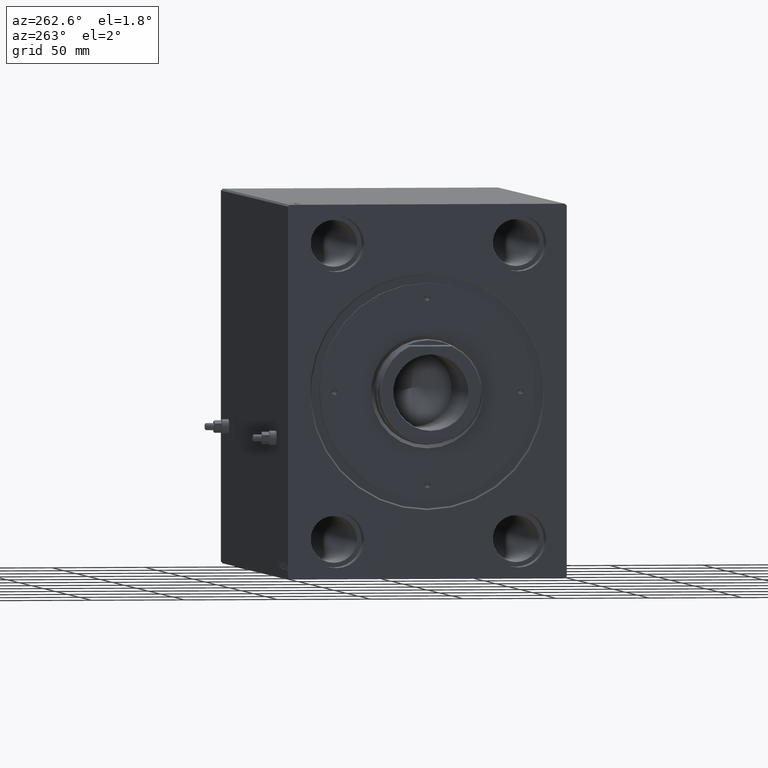
[diagram: clean part render]
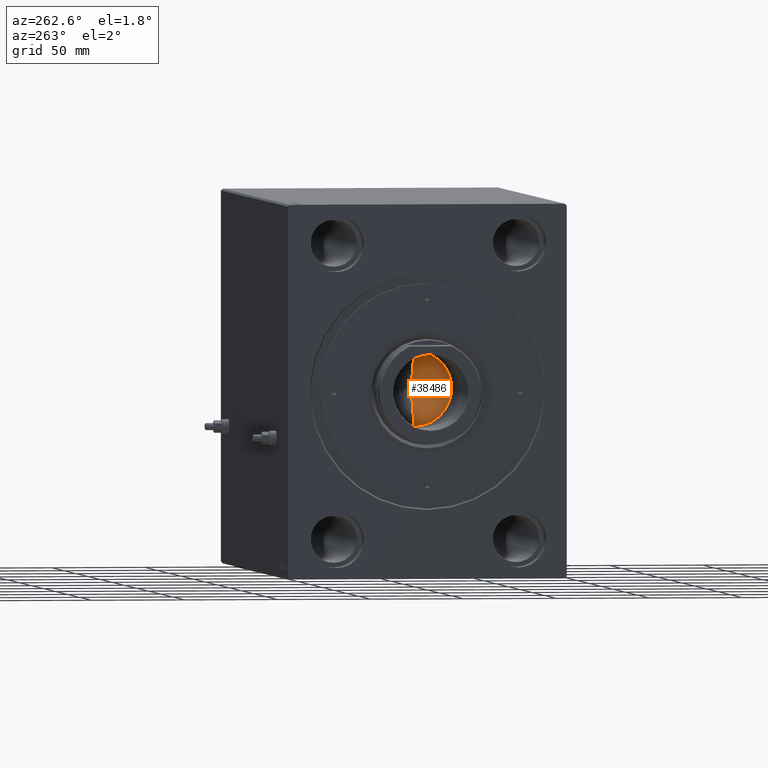
[diagram: same view with one face highlighted and labeled with its STEP entity id]
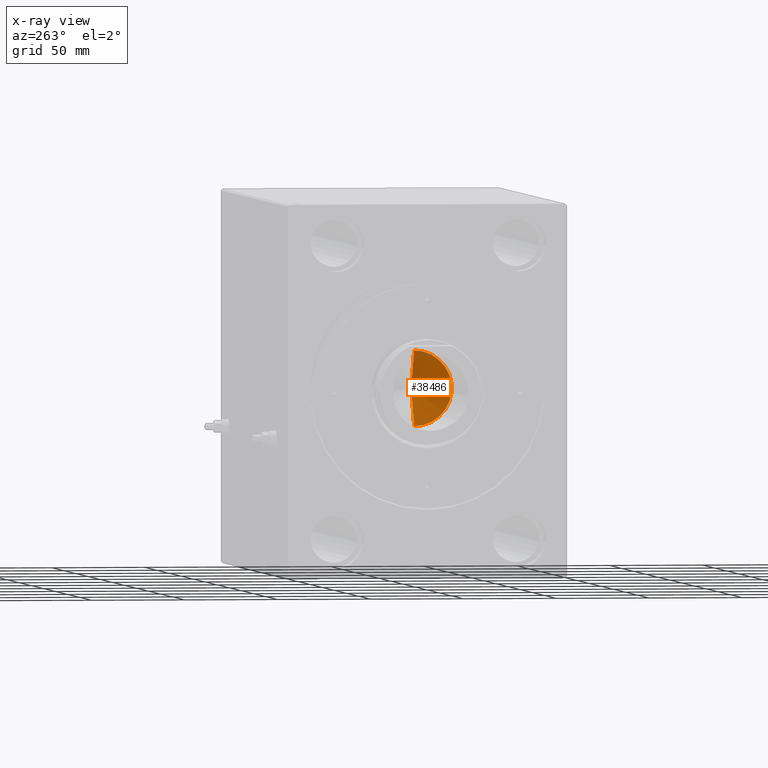
[diagram: x-ray of the same camera — body ghosted, the highlighted face saturated]
A machine part, auxiliary view. The second image highlights one B-rep face of the part: STEP entity #38486.
The next image is the same camera in x-ray: the body ghosted, the highlighted face saturated — about 3% of this face is hidden behind the body in this view.
In plain terms, the highlighted conical surface has half-angle 59 deg.
Its self-contained STEP definition (entity closure, byte-faithful):
#1386 = VERTEX_POINT ( 'NONE', #8578 ) ;
#2125 = CARTESIAN_POINT ( 'NONE',  ( 0.000000000000000000, 0.000000000000000000, 189.6999999999999886 ) ) ;
#3150 = CARTESIAN_POINT ( 'NONE',  ( -20.24999999999998224, 2.479909768273388328E-15, 189.6999999999999886 ) ) ;
#8578 = CARTESIAN_POINT ( 'NONE',  ( -20.24999999999998224, 2.479909768273388328E-15, 189.6999999999999886 ) ) ;
#8590 = VECTOR ( 'NONE', #20526, 1000.000000000000000 ) ;
#11883 = AXIS2_PLACEMENT_3D ( 'NONE', #44325, #13039, #26520 ) ;
#12870 = CARTESIAN_POINT ( 'NONE',  ( 20.24999999999998224, 0.000000000000000000, 189.6999999999999886 ) ) ;
#13039 = DIRECTION ( 'NONE',  ( -0.000000000000000000, -0.000000000000000000, 1.000000000000000000 ) ) ;
#13087 = DIRECTION ( 'NONE',  ( 1.000000000000000000, 0.000000000000000000, 0.000000000000000000 ) ) ;
#13100 = LINE ( 'NONE', #12870, #26562 ) ;
#13671 = AXIS2_PLACEMENT_3D ( 'NONE', #2125, #43696, #13087 ) ;
#14067 = CIRCLE ( 'NONE', #11883, 20.24999999999998224 ) ;
#16859 = EDGE_CURVE ( 'NONE', #1386, #42982, #14067, .T. ) ;
#19729 = FACE_OUTER_BOUND ( 'NONE', #37901, .T. ) ;
#19905 = EDGE_CURVE ( 'NONE', #31353, #42982, #13100, .T. ) ;
#20302 = LINE ( 'NONE', #3150, #8590 ) ;
#20526 = DIRECTION ( 'NONE',  ( -0.8571673007021122226, 1.049727191138618572E-16, 0.5150380749100542666 ) ) ;
#20641 = DIRECTION ( 'NONE',  ( 0.8571673007021122226, 0.000000000000000000, 0.5150380749100542666 ) ) ;
#26520 = DIRECTION ( 'NONE',  ( 1.000000000000000000, 0.000000000000000000, 0.000000000000000000 ) ) ;
#26562 = VECTOR ( 'NONE', #20641, 1000.000000000000000 ) ;
#26840 = CARTESIAN_POINT ( 'NONE',  ( -1.827619939556002415E-14, 0.000000000000000000, 177.5325724646918957 ) ) ;
#27539 = CONICAL_SURFACE ( 'NONE', #13671, 20.24999999999998224, 1.029744258676654312 ) ;
#31353 = VERTEX_POINT ( 'NONE', #26840 ) ;
#33927 = ORIENTED_EDGE ( 'NONE', *, *, #39260, .T. ) ;
#33960 = CARTESIAN_POINT ( 'NONE',  ( 20.24999999999998224, 0.000000000000000000, 189.6999999999999886 ) ) ;
#37901 = EDGE_LOOP ( 'NONE', ( #38308, #33927, #39451 ) ) ;
#38308 = ORIENTED_EDGE ( 'NONE', *, *, #19905, .F. ) ;
#38486 = ADVANCED_FACE ( 'NONE', ( #19729 ), #27539, .F. ) ;
#39260 = EDGE_CURVE ( 'NONE', #31353, #1386, #20302, .T. ) ;
#39451 = ORIENTED_EDGE ( 'NONE', *, *, #16859, .T. ) ;
#42982 = VERTEX_POINT ( 'NONE', #33960 ) ;
#43696 = DIRECTION ( 'NONE',  ( -0.000000000000000000, -0.000000000000000000, 1.000000000000000000 ) ) ;
#44325 = CARTESIAN_POINT ( 'NONE',  ( 0.000000000000000000, 0.000000000000000000, 189.6999999999999886 ) ) ;